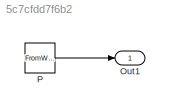
MODEL slx_5c7cfdd7f6b2
KIND model
CONFIG AbsTol = auto
CONFIG EnableMultiTasking = off
CONFIG FixedStep = auto
CONFIG MaxStep = auto
CONFIG MinStep = auto
CONFIG RelTol = 1e-3
CONFIG SampleTimeConstraint = Unconstrained
CONFIG Solver = FixedStepDiscrete
CONFIG SolverName = FixedStepDiscrete
CONFIG StartTime = 0.0
CONFIG StopTime = 10.0
WORKSPACE source: MAT-file member
WORKSPACE X_matrix = [0 0.2 0.4 0.6 0.8 1 1.2 1.4 1.6 1.8 2 2.2 ... (150 elements, 50x3)]
BLOCK [Outport] Out1
  IconDisplay = Port number
BLOCK [FromWorkspace] P
  OutputAfterFinalValue = Setting to zero
  VariableName = X_matrix
  ZeroCross = on
LINE P:1 -> Out1:1
